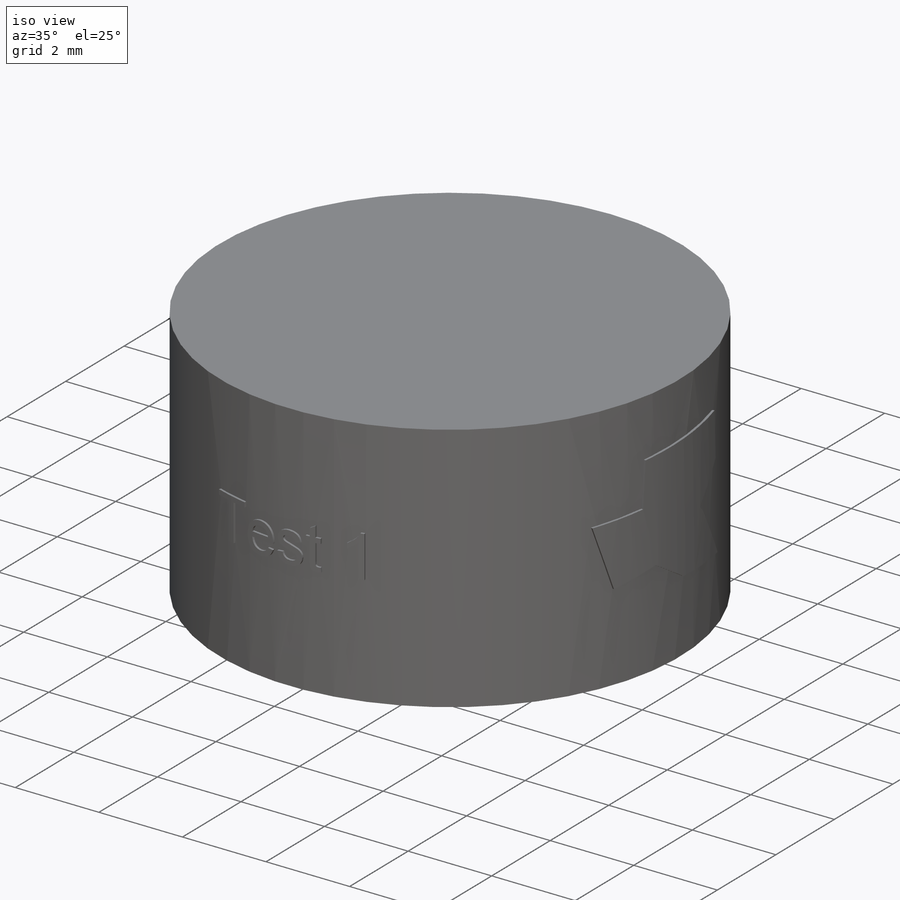
[diagram: iso view]
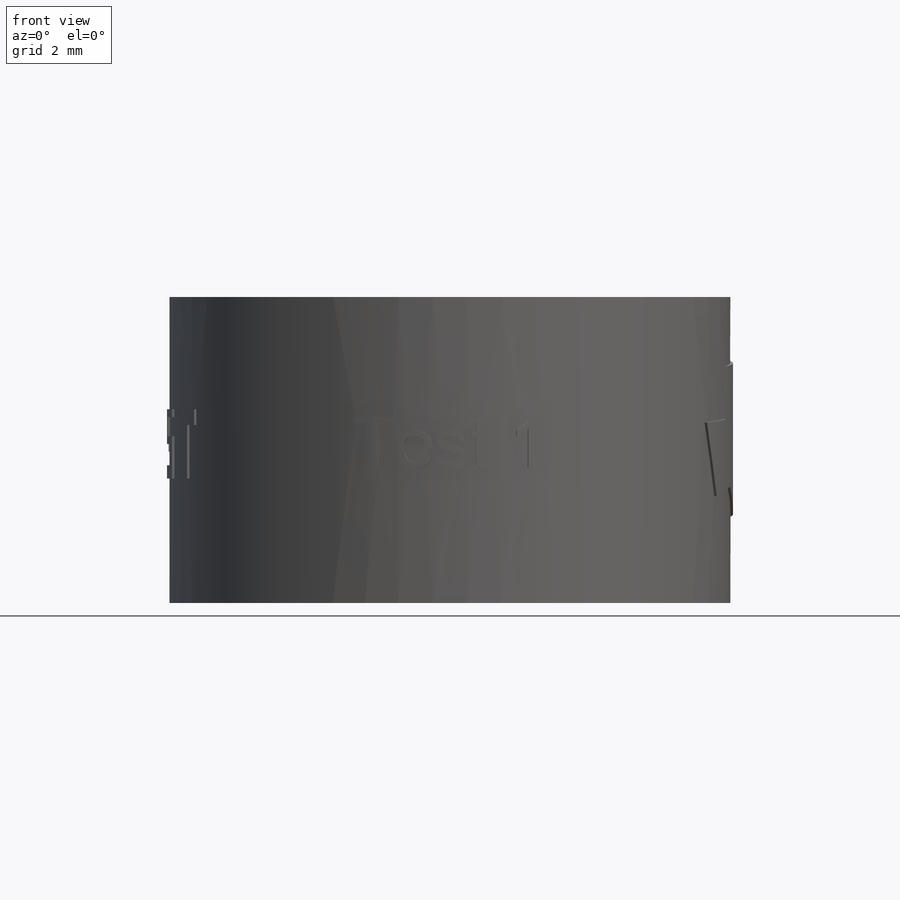
[diagram: front view]
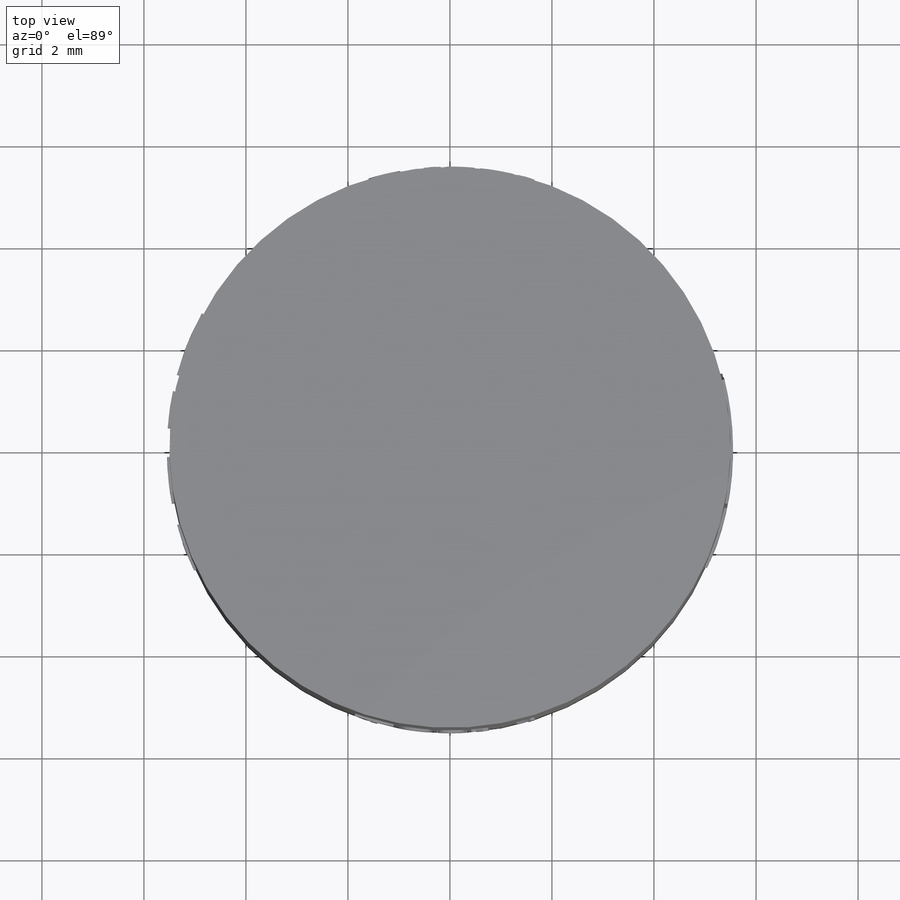
[diagram: top view]
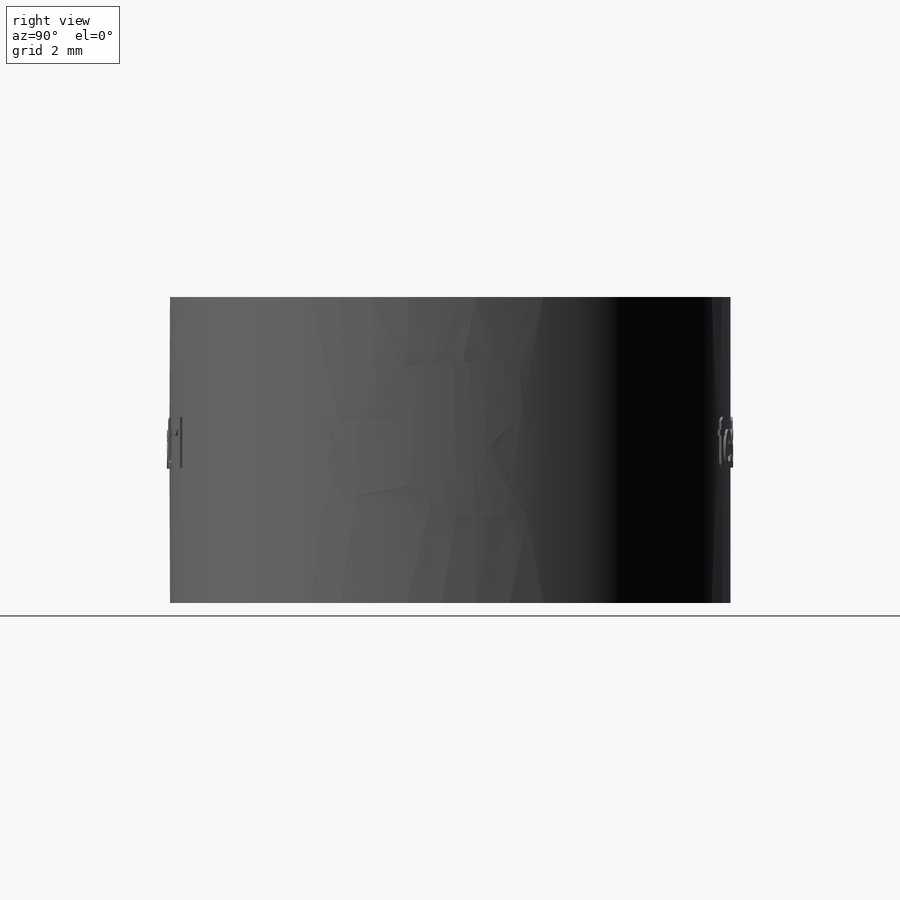
[diagram: right view]
SOLIDWORKS PART (.sldprt)
format: sldprt  version: not decoded by parser v0  size: 770,560 bytes
history: native  units: mm
features: plane x5, sketch x5, material x1, revolve x1 + 1 further entry (+8 scaffold rows collapsed)
feature tree (21):
  scaffold x8  (default folders/planes/origin — collapsed)
  material  "POM"
  plane  "Ebene vorne"
  plane  "Ebene oben"
  plane  "Ebene rechts"
  "PW2_UID_val"
  sketch  "Skizze1"  dims[D1=11.0mm D2=6.0mm]
  revolve  "Rotation1"  Angle=360deg
  sketch  "Skizze2"  dims[c1.D1=~2.648705mm c2.D1=0.05mm]
  plane  "Ebene1"
  sketch  "Skizze3"  dims[c1.D1=~3.070452mm c2.D1=0.05mm]
  sketch  "Skizze4"  dims[c1.D1=~1.428612mm c2.D1=0.05mm]
  plane  "Ebene2"
  sketch  "Skizze5"  dims[c1.D1=~0.307816mm c2.D1=0.05mm]
decode coverage: 6 of 6 modeling features carry decoded parameters; 1 rows unclassified (native names shown)
note: ~ marks probable driven/reference dimensions
note: suppression state not decoded; provenance and decode notes live in map.json
